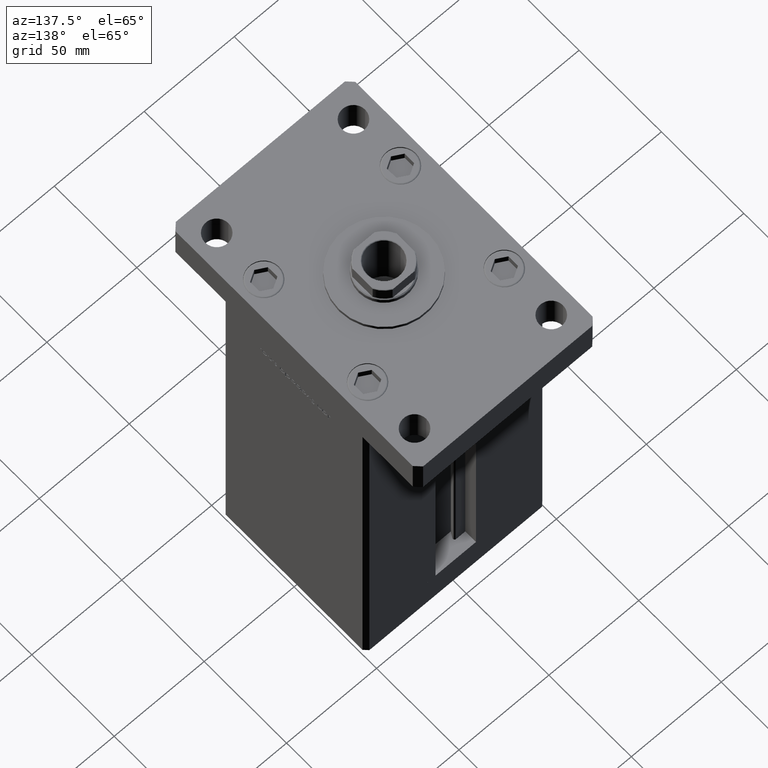
[diagram: clean part render]
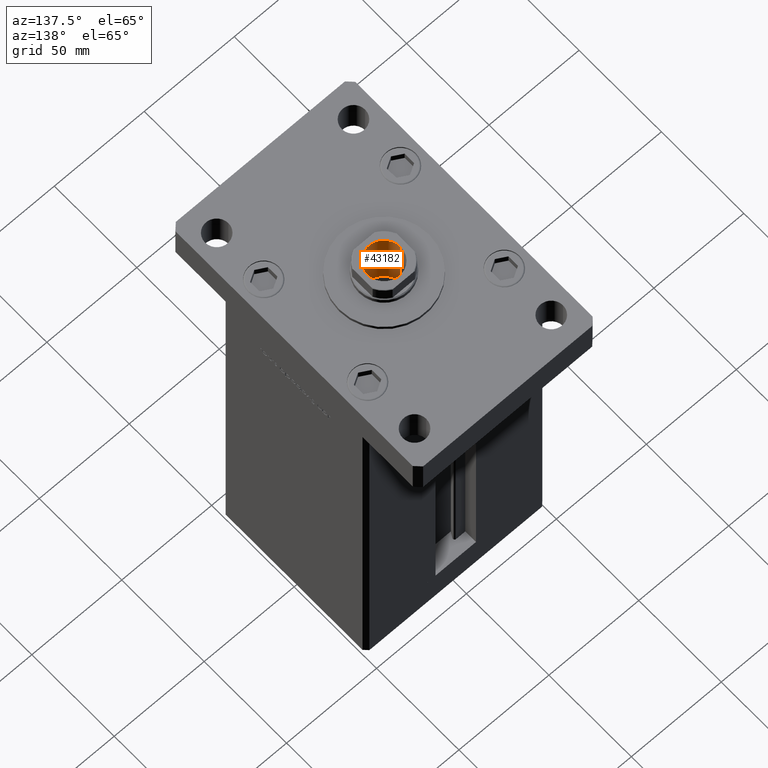
[diagram: same view with one face highlighted and labeled with its STEP entity id]
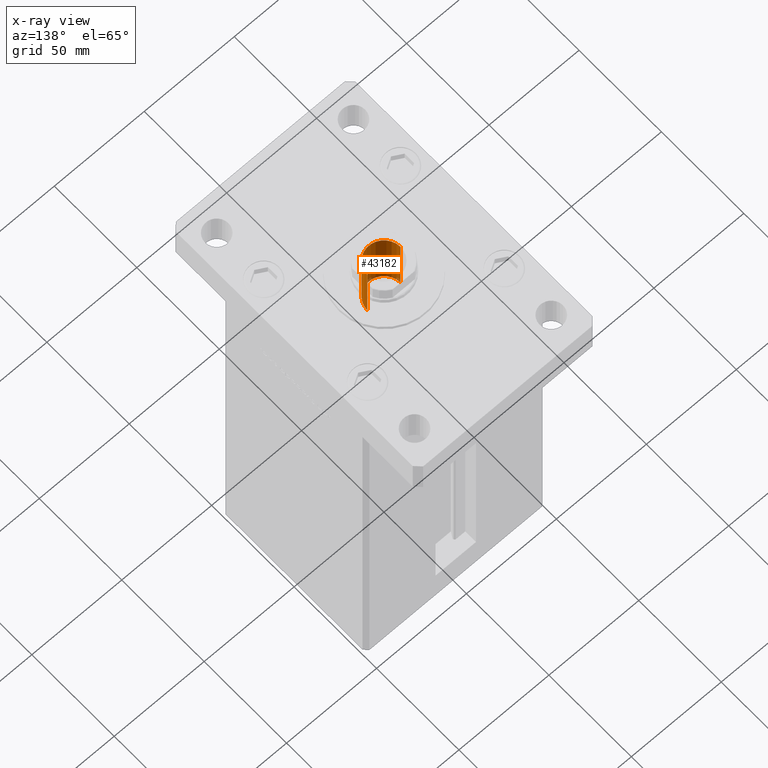
[diagram: x-ray of the same camera — body ghosted, the highlighted face saturated]
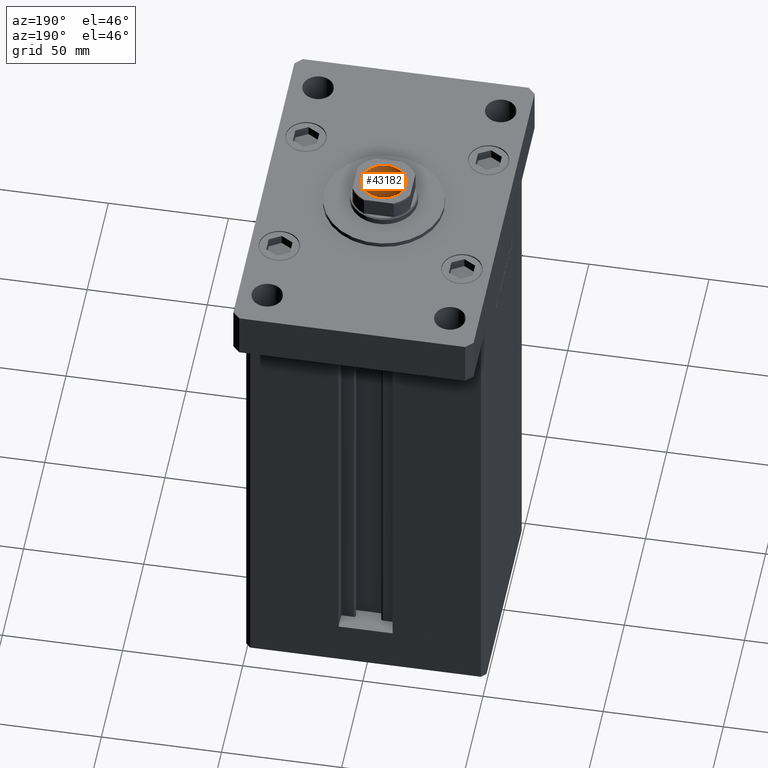
[diagram: same view with one face highlighted and labeled with its STEP entity id]
A machine part, auxiliary view. The second image highlights one B-rep face of the part: STEP entity #43182.
The next image is the same camera in x-ray: the body ghosted, the highlighted face saturated — about 2% of this face is hidden behind the body in this view.
A second angle (auxiliary view) of the same face is appended — the face is thin or edge-on in the first view.
In plain terms, the highlighted cylindrical surface (edge-blend (fillet) strip) has radius 9.25 mm, axis along (0, 0, 1).
Its self-contained STEP definition (entity closure, byte-faithful):
#3475 = CARTESIAN_POINT ( 'NONE',  ( -9.249999999999994671, 1.132798289211300909E-15, 170.2500000000000000 ) ) ;
#5995 = DIRECTION ( 'NONE',  ( -0.000000000000000000, -0.000000000000000000, 1.000000000000000000 ) ) ;
#6364 = FACE_OUTER_BOUND ( 'NONE', #51749, .T. ) ;
#9077 = DIRECTION ( 'NONE',  ( -0.000000000000000000, -0.000000000000000000, 1.000000000000000000 ) ) ;
#10473 = DIRECTION ( 'NONE',  ( 0.000000000000000000, 0.000000000000000000, 1.000000000000000000 ) ) ;
#12788 = CIRCLE ( 'NONE', #43288, 9.249999999999994671 ) ;
#14356 = VERTEX_POINT ( 'NONE', #35504 ) ;
#14824 = CARTESIAN_POINT ( 'NONE',  ( 9.249999999999994671, 0.000000000000000000, 170.2500000000000000 ) ) ;
#16115 = ORIENTED_EDGE ( 'NONE', *, *, #28681, .T. ) ;
#16846 = VERTEX_POINT ( 'NONE', #22259 ) ;
#17557 = EDGE_CURVE ( 'NONE', #18005, #16846, #37837, .T. ) ;
#18005 = VERTEX_POINT ( 'NONE', #14824 ) ;
#19461 = CARTESIAN_POINT ( 'NONE',  ( 0.000000000000000000, 0.000000000000000000, 204.9500000000000455 ) ) ;
#20203 = VERTEX_POINT ( 'NONE', #3475 ) ;
#21310 = ORIENTED_EDGE ( 'NONE', *, *, #49080, .F. ) ;
#22259 = CARTESIAN_POINT ( 'NONE',  ( 9.249999999999996447, 0.000000000000000000, 204.9500000000000455 ) ) ;
#23171 = CARTESIAN_POINT ( 'NONE',  ( 0.000000000000000000, 0.000000000000000000, 170.2500000000000000 ) ) ;
#24858 = ORIENTED_EDGE ( 'NONE', *, *, #17557, .F. ) ;
#28660 = VECTOR ( 'NONE', #45207, 1000.000000000000000 ) ;
#28681 = EDGE_CURVE ( 'NONE', #20203, #14356, #41526, .T. ) ;
#29810 = CARTESIAN_POINT ( 'NONE',  ( -9.249999999999996447, 1.132798289211301304E-15, 205.2500000000000284 ) ) ;
#31206 = DIRECTION ( 'NONE',  ( 1.000000000000000000, 0.000000000000000000, 0.000000000000000000 ) ) ;
#35504 = CARTESIAN_POINT ( 'NONE',  ( -9.249999999999996447, 1.132798289211301304E-15, 204.9500000000000455 ) ) ;
#37019 = CARTESIAN_POINT ( 'NONE',  ( 9.249999999999996447, 0.000000000000000000, 205.2500000000000284 ) ) ;
#37837 = LINE ( 'NONE', #37019, #28660 ) ;
#38610 = ORIENTED_EDGE ( 'NONE', *, *, #45205, .T. ) ;
#39109 = DIRECTION ( 'NONE',  ( -0.000000000000000000, -0.000000000000000000, 1.000000000000000000 ) ) ;
#39908 = CYLINDRICAL_SURFACE ( 'NONE', #48319, 9.249999999999996447 ) ;
#40329 = DIRECTION ( 'NONE',  ( 1.000000000000000000, 0.000000000000000000, 0.000000000000000000 ) ) ;
#41412 = AXIS2_PLACEMENT_3D ( 'NONE', #19461, #10473, #31206 ) ;
#41526 = LINE ( 'NONE', #29810, #42827 ) ;
#42827 = VECTOR ( 'NONE', #9077, 1000.000000000000000 ) ;
#43182 = ADVANCED_FACE ( 'NONE', ( #6364 ), #39908, .F. ) ;
#43288 = AXIS2_PLACEMENT_3D ( 'NONE', #23171, #5995, #40329 ) ;
#44879 = CIRCLE ( 'NONE', #41412, 9.249999999999996447 ) ;
#45205 = EDGE_CURVE ( 'NONE', #14356, #16846, #44879, .T. ) ;
#45207 = DIRECTION ( 'NONE',  ( -0.000000000000000000, -0.000000000000000000, 1.000000000000000000 ) ) ;
#48319 = AXIS2_PLACEMENT_3D ( 'NONE', #48372, #39109, #51390 ) ;
#48372 = CARTESIAN_POINT ( 'NONE',  ( 0.000000000000000000, 0.000000000000000000, 205.2500000000000284 ) ) ;
#49080 = EDGE_CURVE ( 'NONE', #20203, #18005, #12788, .T. ) ;
#51390 = DIRECTION ( 'NONE',  ( 1.000000000000000000, 0.000000000000000000, 0.000000000000000000 ) ) ;
#51749 = EDGE_LOOP ( 'NONE', ( #21310, #16115, #38610, #24858 ) ) ;